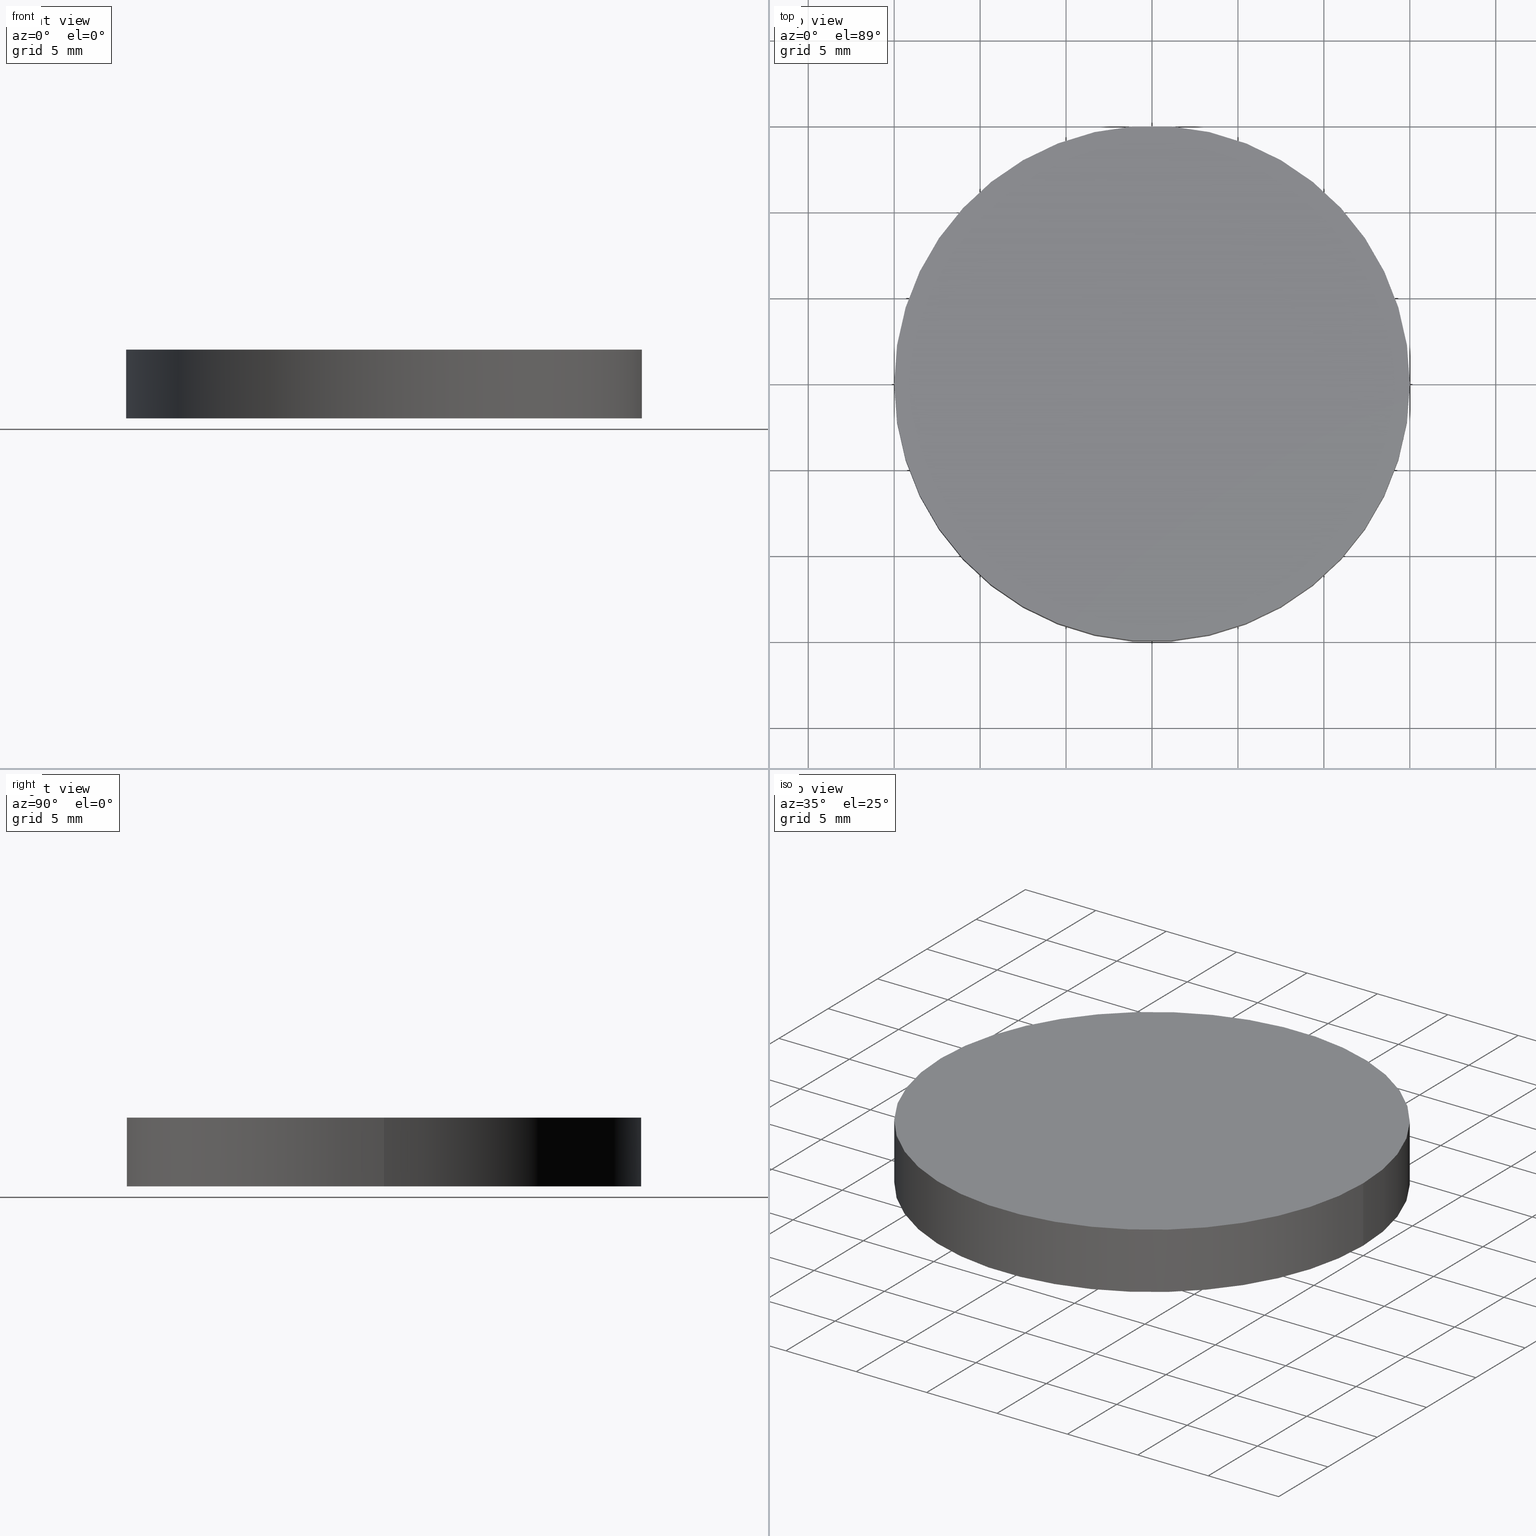
[diagram: canonical four-view strip — front | top / right | iso, engineering-drawing reading convention]
A machine part, canonical four-view strip (front | top / right | iso — engineering-drawing reading convention). The complete STEP part file that produces these views, byte-faithful:
ISO-10303-21;
HEADER;
FILE_DESCRIPTION (( 'STEP AP214' ),
    '1' );
FILE_NAME ('180007.STEP',
    '2019-07-09T05:43:47',
    ( 'user' ),
    ( '΢���й�' ),
    'SwSTEP 2.0',
    'SolidWorks 2016',
    '' );
FILE_SCHEMA (( 'AUTOMOTIVE_DESIGN' ));
ENDSEC;

DATA;
#1 = DIRECTION ( 'NONE',  ( 0.0000000000000000000, 0.0000000000000000000, 1.000000000000000000 ) ) ;
#2 = FACE_OUTER_BOUND ( 'NONE', #70, .T. ) ;
#3 = ORIENTED_EDGE ( 'NONE', *, *, #15, .T. ) ;
#4 = AXIS2_PLACEMENT_3D ( 'NONE', #63, #1, #69 ) ;
#5 = AXIS2_PLACEMENT_3D ( 'NONE', #85, #33, #101 ) ;
#6 = VERTEX_POINT ( 'NONE', #46 ) ;
#7 = EDGE_CURVE ( 'NONE', #120, #37, #60, .T. ) ;
#8 = DIRECTION ( 'NONE',  ( -0.0000000000000000000, -0.0000000000000000000, -1.000000000000000000 ) ) ;
#9 = APPLICATION_PROTOCOL_DEFINITION ( 'draft international standard', 'automotive_design', 1998, #20 ) ;
#10 = CARTESIAN_POINT ( 'NONE',  ( 0.0000000000000000000, 0.0000000000000000000, 4.000000000000000000 ) ) ;
#11 =( LENGTH_UNIT ( ) NAMED_UNIT ( * ) SI_UNIT ( .MILLI., .METRE. ) );
#12 = PRODUCT_CONTEXT ( 'NONE', #20, 'mechanical' ) ;
#13 = PRODUCT_DEFINITION ( 'δ֪', '', #17, #71 ) ;
#14 = ORIENTED_EDGE ( 'NONE', *, *, #107, .F. ) ;
#15 = EDGE_CURVE ( 'NONE', #24, #6, #134, .T. ) ;
#16 = CIRCLE ( 'NONE', #90, 15.00000000000000000 ) ;
#17 = PRODUCT_DEFINITION_FORMATION_WITH_SPECIFIED_SOURCE ( '�κ�', '', #136, .NOT_KNOWN. ) ;
#18 = ORIENTED_EDGE ( 'NONE', *, *, #40, .F. ) ;
#19 = DIRECTION ( 'NONE',  ( 1.000000000000000000, 0.0000000000000000000, 0.0000000000000000000 ) ) ;
#20 = APPLICATION_CONTEXT ( 'automotive_design' ) ;
#21 = DIRECTION ( 'NONE',  ( -0.0000000000000000000, -0.0000000000000000000, -1.000000000000000000 ) ) ;
#22 =( NAMED_UNIT ( * ) SI_UNIT ( $, .STERADIAN. ) SOLID_ANGLE_UNIT ( ) );
#23 = APPLICATION_PROTOCOL_DEFINITION ( 'draft international standard', 'automotive_design', 1998, #76 ) ;
#24 = VERTEX_POINT ( 'NONE', #96 ) ;
#25 = AXIS2_PLACEMENT_3D ( 'NONE', #67, #129, #62 ) ;
#26 = EDGE_LOOP ( 'NONE', ( #112, #53, #3, #14 ) ) ;
#27 = PRODUCT_RELATED_PRODUCT_CATEGORY ( 'part', '', ( #136 ) ) ;
#28 = DIRECTION ( 'NONE',  ( 1.000000000000000000, 0.0000000000000000000, 0.0000000000000000000 ) ) ;
#29 = DIRECTION ( 'NONE',  ( 0.0000000000000000000, 0.0000000000000000000, 1.000000000000000000 ) ) ;
#30 = PLANE ( 'NONE',  #135 ) ;
#31 = UNCERTAINTY_MEASURE_WITH_UNIT (LENGTH_MEASURE( 1.000000000000000100E-005 ), #110, 'distance_accuracy_value', 'NONE');
#32 = AXIS2_PLACEMENT_3D ( 'NONE', #10, #21, #68 ) ;
#33 = DIRECTION ( 'NONE',  ( 0.0000000000000000000, 0.0000000000000000000, 1.000000000000000000 ) ) ;
#34 = UNCERTAINTY_MEASURE_WITH_UNIT (LENGTH_MEASURE( 1.000000000000000100E-005 ), #11, 'distance_accuracy_value', 'NONE');
#35 = CARTESIAN_POINT ( 'NONE',  ( 15.00000000000000000, 1.836970198721029600E-015, 4.000000000000000000 ) ) ;
#36 = FILL_AREA_STYLE ('',( #118 ) ) ;
#37 = VERTEX_POINT ( 'NONE', #54 ) ;
#38 = PRESENTATION_LAYER_ASSIGNMENT (  '', '', ( #115 ) ) ;
#39 = SURFACE_STYLE_FILL_AREA ( #36 ) ;
#40 = EDGE_CURVE ( 'NONE', #6, #24, #16, .T. ) ;
#41 =( GEOMETRIC_REPRESENTATION_CONTEXT ( 3 ) GLOBAL_UNCERTAINTY_ASSIGNED_CONTEXT ( ( #34 ) ) GLOBAL_UNIT_ASSIGNED_CONTEXT ( ( #11, #75, #22 ) ) REPRESENTATION_CONTEXT ( 'NONE', 'WORKASPACE' ) );
#42 = CIRCLE ( 'NONE', #5, 15.00000000000000000 ) ;
#43 = ORIENTED_EDGE ( 'NONE', *, *, #15, .F. ) ;
#44 = FILL_AREA_STYLE ('',( #83 ) ) ;
#45 = DIRECTION ( 'NONE',  ( 1.000000000000000000, 0.0000000000000000000, 0.0000000000000000000 ) ) ;
#46 = CARTESIAN_POINT ( 'NONE',  ( -15.00000000000000000, 0.0000000000000000000, 0.0000000000000000000 ) ) ;
#47 = CYLINDRICAL_SURFACE ( 'NONE', #32, 15.00000000000000000 ) ;
#48 = PLANE ( 'NONE',  #78 ) ;
#49 = SURFACE_STYLE_USAGE ( .BOTH. , #102 ) ;
#50 = ORIENTED_EDGE ( 'NONE', *, *, #64, .T. ) ;
#51 = SURFACE_STYLE_USAGE ( .BOTH. , #95 ) ;
#52 = MANIFOLD_SOLID_BREP ( '͹̨-����1', #61 ) ;
#53 = ORIENTED_EDGE ( 'NONE', *, *, #103, .T. ) ;
#54 = CARTESIAN_POINT ( 'NONE',  ( -15.00000000000000000, 0.0000000000000000000, 4.000000000000000000 ) ) ;
#55 = ADVANCED_FACE ( 'NONE', ( #2 ), #30, .T. ) ;
#56 = DIRECTION ( 'NONE',  ( 0.0000000000000000000, 0.0000000000000000000, 1.000000000000000000 ) ) ;
#57 = DIRECTION ( 'NONE',  ( 0.0000000000000000000, 0.0000000000000000000, 1.000000000000000000 ) ) ;
#58 =( NAMED_UNIT ( * ) PLANE_ANGLE_UNIT ( ) SI_UNIT ( $, .RADIAN. ) );
#59 = ORIENTED_EDGE ( 'NONE', *, *, #40, .T. ) ;
#60 = CIRCLE ( 'NONE', #111, 15.00000000000000000 ) ;
#61 = CLOSED_SHELL ( 'NONE', ( #109, #114, #55, #121 ) ) ;
#62 = DIRECTION ( 'NONE',  ( -1.000000000000000000, 0.0000000000000000000, 0.0000000000000000000 ) ) ;
#63 = CARTESIAN_POINT ( 'NONE',  ( 0.0000000000000000000, 0.0000000000000000000, 0.0000000000000000000 ) ) ;
#64 = EDGE_CURVE ( 'NONE', #37, #120, #42, .T. ) ;
#65 = VECTOR ( 'NONE', #117, 1000.000000000000000 ) ;
#66 = PRODUCT_DEFINITION_SHAPE ( 'NONE', 'NONE',  #13 ) ;
#67 = CARTESIAN_POINT ( 'NONE',  ( 0.0000000000000000000, 0.0000000000000000000, 4.000000000000000000 ) ) ;
#68 = DIRECTION ( 'NONE',  ( -1.000000000000000000, 0.0000000000000000000, 0.0000000000000000000 ) ) ;
#69 = DIRECTION ( 'NONE',  ( 1.000000000000000000, 0.0000000000000000000, 0.0000000000000000000 ) ) ;
#70 = EDGE_LOOP ( 'NONE', ( #50, #106 ) ) ;
#71 = PRODUCT_DEFINITION_CONTEXT ( 'detailed design', #76, 'design' ) ;
#72 = CARTESIAN_POINT ( 'NONE',  ( 0.0000000000000000000, 0.0000000000000000000, 4.000000000000000000 ) ) ;
#73 = CARTESIAN_POINT ( 'NONE',  ( 15.00000000000000000, 1.836970198721029600E-015, 4.000000000000000000 ) ) ;
#74 = LINE ( 'NONE', #73, #138 ) ;
#75 =( NAMED_UNIT ( * ) PLANE_ANGLE_UNIT ( ) SI_UNIT ( $, .RADIAN. ) );
#76 = APPLICATION_CONTEXT ( 'automotive_design' ) ;
#77 = ORIENTED_EDGE ( 'NONE', *, *, #107, .T. ) ;
#78 = AXIS2_PLACEMENT_3D ( 'NONE', #86, #57, #130 ) ;
#79 = ORIENTED_EDGE ( 'NONE', *, *, #103, .F. ) ;
#80 = EDGE_LOOP ( 'NONE', ( #18, #43 ) ) ;
#81 = CARTESIAN_POINT ( 'NONE',  ( 0.0000000000000000000, 0.0000000000000000000, 0.0000000000000000000 ) ) ;
#82 = DIRECTION ( 'NONE',  ( 0.0000000000000000000, 0.0000000000000000000, 1.000000000000000000 ) ) ;
#83 = FILL_AREA_STYLE_COLOUR ( '', #92 ) ;
#84 =( NAMED_UNIT ( * ) SI_UNIT ( $, .STERADIAN. ) SOLID_ANGLE_UNIT ( ) );
#85 = CARTESIAN_POINT ( 'NONE',  ( 0.0000000000000000000, 0.0000000000000000000, 4.000000000000000000 ) ) ;
#86 = CARTESIAN_POINT ( 'NONE',  ( 0.0000000000000000000, 0.0000000000000000000, 0.0000000000000000000 ) ) ;
#87 = EDGE_LOOP ( 'NONE', ( #79, #139, #77, #59 ) ) ;
#88 =( GEOMETRIC_REPRESENTATION_CONTEXT ( 3 ) GLOBAL_UNCERTAINTY_ASSIGNED_CONTEXT ( ( #31 ) ) GLOBAL_UNIT_ASSIGNED_CONTEXT ( ( #110, #116, #84 ) ) REPRESENTATION_CONTEXT ( 'NONE', 'WORKASPACE' ) );
#89 = FACE_OUTER_BOUND ( 'NONE', #80, .T. ) ;
#90 = AXIS2_PLACEMENT_3D ( 'NONE', #81, #29, #28 ) ;
#91 = STYLED_ITEM ( 'NONE', ( #133 ), #137 ) ;
#92 = COLOUR_RGB ( '',1.000000000000000000, 1.000000000000000000, 1.000000000000000000 ) ;
#93 = SHAPE_DEFINITION_REPRESENTATION ( #66, #137 ) ;
#94 = FACE_OUTER_BOUND ( 'NONE', #26, .T. ) ;
#95 = SURFACE_SIDE_STYLE ('',( #108 ) ) ;
#96 = CARTESIAN_POINT ( 'NONE',  ( 15.00000000000000000, 1.836970198721029600E-015, 0.0000000000000000000 ) ) ;
#97 = DIRECTION ( 'NONE',  ( 0.0000000000000000000, 0.0000000000000000000, 1.000000000000000000 ) ) ;
#98 = CARTESIAN_POINT ( 'NONE',  ( 0.0000000000000000000, 0.0000000000000000000, 4.000000000000000000 ) ) ;
#99 = CARTESIAN_POINT ( 'NONE',  ( 0.0000000000000000000, 0.0000000000000000000, 0.0000000000000000000 ) ) ;
#100 = COLOUR_RGB ( '',1.000000000000000000, 1.000000000000000000, 1.000000000000000000 ) ;
#101 = DIRECTION ( 'NONE',  ( 1.000000000000000000, 0.0000000000000000000, 0.0000000000000000000 ) ) ;
#102 = SURFACE_SIDE_STYLE ('',( #39 ) ) ;
#103 = EDGE_CURVE ( 'NONE', #120, #24, #74, .T. ) ;
#104 = FACE_OUTER_BOUND ( 'NONE', #87, .T. ) ;
#105 = PRESENTATION_LAYER_ASSIGNMENT (  '', '', ( #91 ) ) ;
#106 = ORIENTED_EDGE ( 'NONE', *, *, #7, .T. ) ;
#107 = EDGE_CURVE ( 'NONE', #37, #6, #127, .T. ) ;
#108 = SURFACE_STYLE_FILL_AREA ( #44 ) ;
#109 = ADVANCED_FACE ( 'NONE', ( #94 ), #132, .T. ) ;
#110 =( LENGTH_UNIT ( ) NAMED_UNIT ( * ) SI_UNIT ( .MILLI., .METRE. ) );
#111 = AXIS2_PLACEMENT_3D ( 'NONE', #98, #97, #45 ) ;
#112 = ORIENTED_EDGE ( 'NONE', *, *, #7, .F. ) ;
#113 = MECHANICAL_DESIGN_GEOMETRIC_PRESENTATION_REPRESENTATION (  '', ( #91 ), #124 ) ;
#114 = ADVANCED_FACE ( 'NONE', ( #104 ), #47, .T. ) ;
#115 = STYLED_ITEM ( 'NONE', ( #122 ), #52 ) ;
#116 =( NAMED_UNIT ( * ) PLANE_ANGLE_UNIT ( ) SI_UNIT ( $, .RADIAN. ) );
#117 = DIRECTION ( 'NONE',  ( -0.0000000000000000000, -0.0000000000000000000, -1.000000000000000000 ) ) ;
#118 = FILL_AREA_STYLE_COLOUR ( '', #100 ) ;
#119 =( LENGTH_UNIT ( ) NAMED_UNIT ( * ) SI_UNIT ( .MILLI., .METRE. ) );
#120 = VERTEX_POINT ( 'NONE', #35 ) ;
#121 = ADVANCED_FACE ( 'NONE', ( #89 ), #48, .F. ) ;
#122 = PRESENTATION_STYLE_ASSIGNMENT (( #51 ) ) ;
#123 = AXIS2_PLACEMENT_3D ( 'NONE', #99, #56, #19 ) ;
#124 =( GEOMETRIC_REPRESENTATION_CONTEXT ( 3 ) GLOBAL_UNCERTAINTY_ASSIGNED_CONTEXT ( ( #126 ) ) GLOBAL_UNIT_ASSIGNED_CONTEXT ( ( #119, #58, #131 ) ) REPRESENTATION_CONTEXT ( 'NONE', 'WORKASPACE' ) );
#125 = MECHANICAL_DESIGN_GEOMETRIC_PRESENTATION_REPRESENTATION (  '', ( #115 ), #88 ) ;
#126 = UNCERTAINTY_MEASURE_WITH_UNIT (LENGTH_MEASURE( 1.000000000000000100E-005 ), #119, 'distance_accuracy_value', 'NONE');
#127 = LINE ( 'NONE', #140, #65 ) ;
#128 = DIRECTION ( 'NONE',  ( 1.000000000000000000, 0.0000000000000000000, -0.0000000000000000000 ) ) ;
#129 = DIRECTION ( 'NONE',  ( -0.0000000000000000000, -0.0000000000000000000, -1.000000000000000000 ) ) ;
#130 = DIRECTION ( 'NONE',  ( 1.000000000000000000, 0.0000000000000000000, -0.0000000000000000000 ) ) ;
#131 =( NAMED_UNIT ( * ) SI_UNIT ( $, .STERADIAN. ) SOLID_ANGLE_UNIT ( ) );
#132 = CYLINDRICAL_SURFACE ( 'NONE', #25, 15.00000000000000000 ) ;
#133 = PRESENTATION_STYLE_ASSIGNMENT (( #49 ) ) ;
#134 = CIRCLE ( 'NONE', #123, 15.00000000000000000 ) ;
#135 = AXIS2_PLACEMENT_3D ( 'NONE', #72, #82, #128 ) ;
#136 = PRODUCT ( '180007', '180007', '', ( #12 ) ) ;
#137 = ADVANCED_BREP_SHAPE_REPRESENTATION ( '180007', ( #52, #4 ), #41 ) ;
#138 = VECTOR ( 'NONE', #8, 1000.000000000000000 ) ;
#139 = ORIENTED_EDGE ( 'NONE', *, *, #64, .F. ) ;
#140 = CARTESIAN_POINT ( 'NONE',  ( -15.00000000000000000, 0.0000000000000000000, 4.000000000000000000 ) ) ;
ENDSEC;
END-ISO-10303-21;
